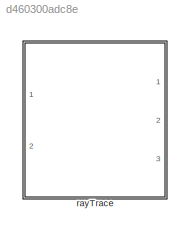
MODEL slx_d460300adc8e
KIND library
CONFIG AbsTol = auto
CONFIG EnableMultiTasking = off
CONFIG FixedStep = auto
CONFIG MaxStep = auto
CONFIG MinStep = auto
CONFIG RelTol = 1e-3
CONFIG SampleTimeConstraint = Unconstrained
CONFIG Solver = VariableStepAuto
CONFIG SolverName = VariableStepAuto
CONFIG StartTime = 0.0
CONFIG StopTime = 10.0
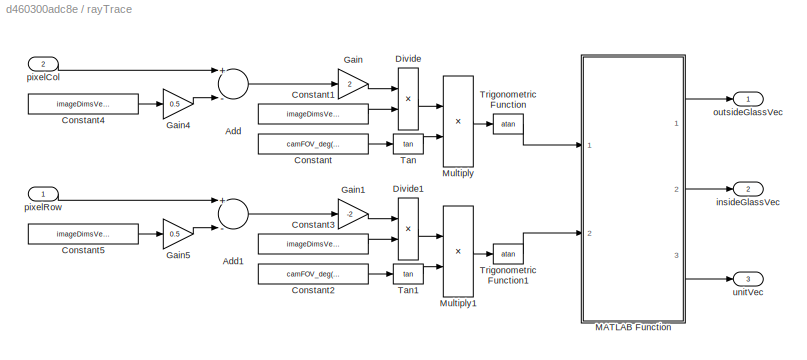
BLOCK [SubSystem] rayTrace
  Ports = [2, 3]
  RequestExecContextInheritance = off
BLOCK [Sum] rayTrace/Add
  InputSameDT = off
  Inputs = +-
  OutDataTypeStr = Inherit: Inherit via internal rule
  Ports = [2, 1]
  SaturateOnIntegerOverflow = off
BLOCK [Sum] rayTrace/Add1
  InputSameDT = off
  Inputs = +-
  OutDataTypeStr = Inherit: Inherit via internal rule
  Ports = [2, 1]
  SaturateOnIntegerOverflow = off
BLOCK [Constant] rayTrace/Constant
  Value = camFOV_deg(1)*pi/180
BLOCK [Constant] rayTrace/Constant1
  Value = imageDimsVec_px(2)
BLOCK [Constant] rayTrace/Constant2
  Value = camFOV_deg(2)*pi/180
BLOCK [Constant] rayTrace/Constant3
  Value = imageDimsVec_px(1)
BLOCK [Constant] rayTrace/Constant4
  Value = imageDimsVec_px(2)
BLOCK [Constant] rayTrace/Constant5
  Value = imageDimsVec_px(1)
BLOCK [Product] rayTrace/Divide
  InputSameDT = off
  Inputs = */
  OutDataTypeStr = Inherit: Inherit via internal rule
  Ports = [2, 1]
  RndMeth = Floor
  SaturateOnIntegerOverflow = off
BLOCK [Product] rayTrace/Divide1
  InputSameDT = off
  Inputs = */
  OutDataTypeStr = Inherit: Inherit via internal rule
  Ports = [2, 1]
  RndMeth = Floor
  SaturateOnIntegerOverflow = off
BLOCK [Gain] rayTrace/Gain
  Gain = 2
  OutDataTypeStr = Inherit: Inherit via internal rule
  ParamDataTypeStr = Inherit: Inherit via internal rule
  SaturateOnIntegerOverflow = off
BLOCK [Gain] rayTrace/Gain1
  Gain = -2
  OutDataTypeStr = Inherit: Inherit via internal rule
  ParamDataTypeStr = Inherit: Inherit via internal rule
  SaturateOnIntegerOverflow = off
BLOCK [Gain] rayTrace/Gain4
  Gain = 0.5
  OutDataTypeStr = Inherit: Inherit via internal rule
  ParamDataTypeStr = Inherit: Inherit via internal rule
  SaturateOnIntegerOverflow = off
BLOCK [Gain] rayTrace/Gain5
  Gain = 0.5
  OutDataTypeStr = Inherit: Inherit via internal rule
  ParamDataTypeStr = Inherit: Inherit via internal rule
  SaturateOnIntegerOverflow = off
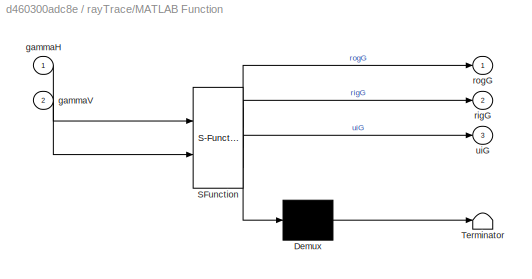
BLOCK [SubSystem] rayTrace/MATLAB Function
  ErrorFcn = Stateflow.Translate.translate
  PermitHierarchicalResolution = ExplicitOnly
  Ports = [2, 3]
  RequestExecContextInheritance = off
  SFBlockType = MATLAB Function
  TreatAsAtomicUnit = on
BLOCK [Demux] rayTrace/MATLAB Function/ Demux 
  Outputs = 1
  Ports = [1, 1]
BLOCK [S-Function] rayTrace/MATLAB Function/ SFunction 
  EnableBusSupport = off
  FunctionName = sf_sfun
  Parameters = Periscope,camPosVec_cm,dist2Glass_cm,glassPlane,glassThickness_cm,grnd2CamRotMat,indOfRefVec
  PortCounts = [2 4]
  Ports = [2, 4]
  SFcnIsStateOwnerBlock = off
  SFunctionDeploymentMode = off
  Tag = Stateflow S-Function rayTrace_ul 2
BLOCK [Terminator] rayTrace/MATLAB Function/ Terminator 
BLOCK [Inport] rayTrace/MATLAB Function/gammaH
  IconDisplay = Port number
BLOCK [Inport] rayTrace/MATLAB Function/gammaV
  IconDisplay = Port number
  Port = 2
BLOCK [Outport] rayTrace/MATLAB Function/rigG
  IconDisplay = Port number
  Port = 2
BLOCK [Outport] rayTrace/MATLAB Function/rogG
  IconDisplay = Port number
BLOCK [Outport] rayTrace/MATLAB Function/uiG
  IconDisplay = Port number
  Port = 3
BLOCK [Product] rayTrace/Multiply
  InputSameDT = off
  OutDataTypeStr = Inherit: Inherit via internal rule
  Ports = [2, 1]
  RndMeth = Floor
  SaturateOnIntegerOverflow = off
BLOCK [Product] rayTrace/Multiply1
  InputSameDT = off
  OutDataTypeStr = Inherit: Inherit via internal rule
  Ports = [2, 1]
  RndMeth = Floor
  SaturateOnIntegerOverflow = off
BLOCK [Trigonometry] rayTrace/Tan
  Operator = tan
  Ports = [1, 1]
BLOCK [Trigonometry] rayTrace/Tan1
  Operator = tan
  Ports = [1, 1]
BLOCK [Trigonometry] rayTrace/Trigonometric Function
  Operator = atan
  Ports = [1, 1]
BLOCK [Trigonometry] rayTrace/Trigonometric Function1
  Operator = atan
  Ports = [1, 1]
BLOCK [Outport] rayTrace/insideGlassVec
  IconDisplay = Port number
  Port = 2
BLOCK [Outport] rayTrace/outsideGlassVec
  IconDisplay = Port number
BLOCK [Inport] rayTrace/pixelCol
  IconDisplay = Port number
  Port = 2
BLOCK [Inport] rayTrace/pixelRow
  IconDisplay = Port number
BLOCK [Outport] rayTrace/unitVec
  IconDisplay = Port number
  Port = 3
LINE rayTrace/Add1:1 -> rayTrace/Gain1:1
LINE rayTrace/Add:1 -> rayTrace/Gain:1
LINE rayTrace/Constant1:1 -> rayTrace/Divide:2
LINE rayTrace/Constant2:1 -> rayTrace/Tan1:1
LINE rayTrace/Constant3:1 -> rayTrace/Divide1:2
LINE rayTrace/Constant4:1 -> rayTrace/Gain4:1
LINE rayTrace/Constant5:1 -> rayTrace/Gain5:1
LINE rayTrace/Constant:1 -> rayTrace/Tan:1
LINE rayTrace/Divide1:1 -> rayTrace/Multiply1:1
LINE rayTrace/Divide:1 -> rayTrace/Multiply:1
LINE rayTrace/Gain1:1 -> rayTrace/Divide1:1
LINE rayTrace/Gain4:1 -> rayTrace/Add:2
LINE rayTrace/Gain5:1 -> rayTrace/Add1:2
LINE rayTrace/Gain:1 -> rayTrace/Divide:1
LINE rayTrace/MATLAB Function:1 -> rayTrace/outsideGlassVec:1
LINE rayTrace/MATLAB Function:2 -> rayTrace/insideGlassVec:1
LINE rayTrace/MATLAB Function:3 -> rayTrace/unitVec:1
LINE rayTrace/Multiply1:1 -> rayTrace/Trigonometric Function1:1
LINE rayTrace/Multiply:1 -> rayTrace/Trigonometric Function:1
LINE rayTrace/Tan1:1 -> rayTrace/Multiply1:2
LINE rayTrace/Tan:1 -> rayTrace/Multiply:2
LINE rayTrace/Trigonometric Function1:1 -> rayTrace/MATLAB Function:2
LINE rayTrace/Trigonometric Function:1 -> rayTrace/MATLAB Function:1
LINE rayTrace/pixelCol:1 -> rayTrace/Add:1
LINE rayTrace/pixelRow:1 -> rayTrace/Add1:1
CHART rayTrace/MATLAB Function states=1 transitions=1
  STATE_LABEL 'eML_blk_kernel()'
  STATE_LABEL 'SCRIPT:\nfunction [rogG,rigG,uiG] = ...\n    rayTrace(gammaH,gammaV,camPosVec_cm,grnd2CamRotMat,dist2Glass_cm,...\n    indOfRefVec,glassPlane,glassThickness_cm,Periscope)\n\n[rogG,rigG,uiG] = ...\n    rayTrace(camPosVec_cm,grnd2CamRotMat,dist2Glass_cm,gammaH,gammaV,...\n    indOfRefVec,glassPlane,glassThickness_cm,Periscope);'
